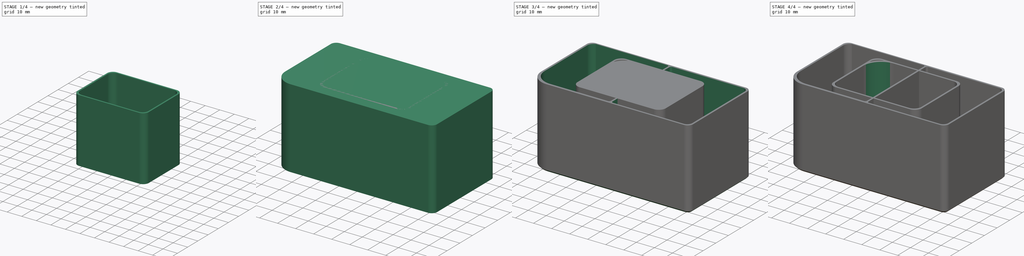
[diagram: build sequence overview — one tinted view per stage of 4, left to right]
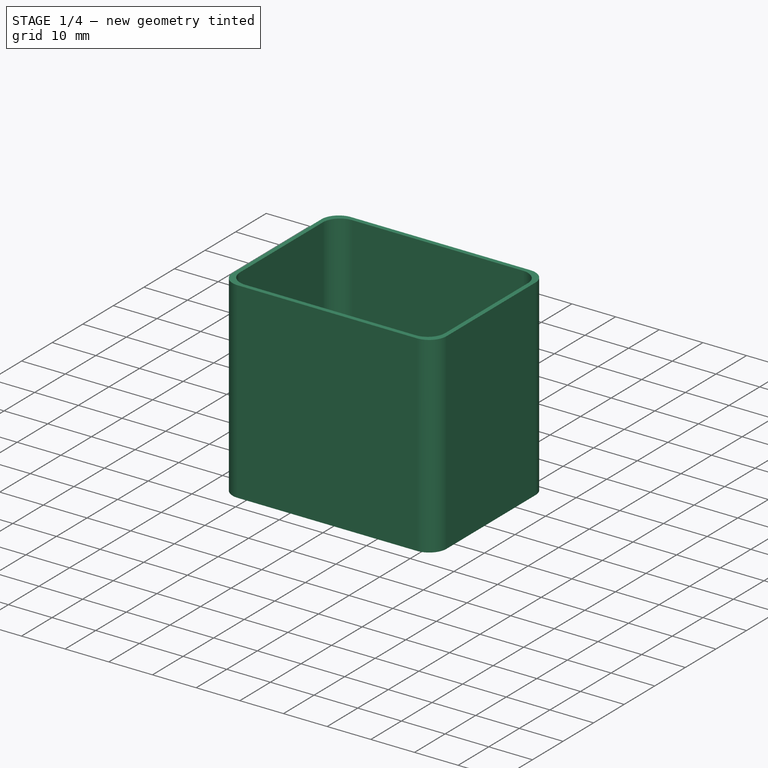
[diagram: stage 1 of 4 — iso view after this stage's code; geometry added in this stage tinted green]
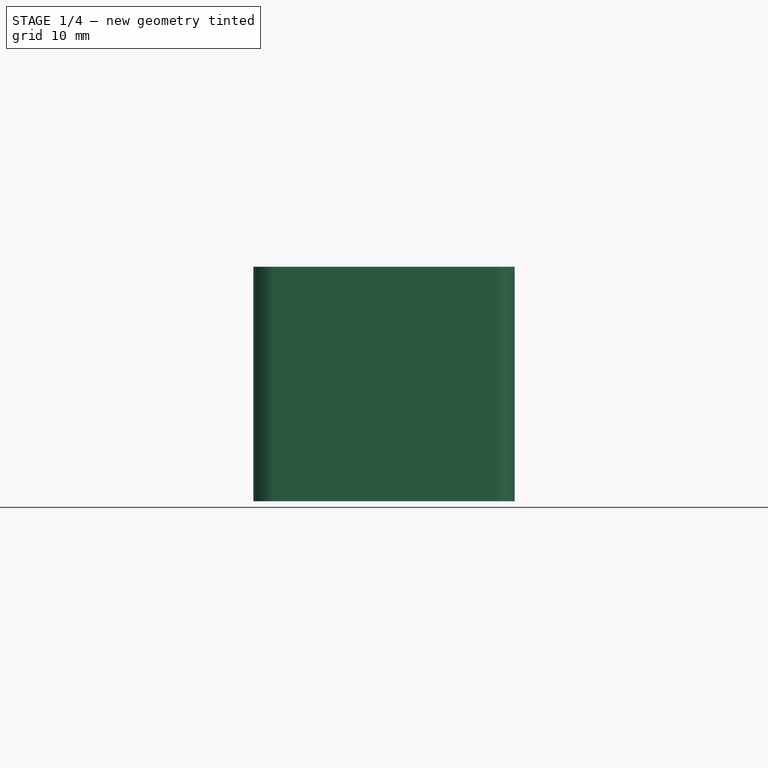
[diagram: stage 1 of 4 — front view after this stage's code; geometry added in this stage tinted green]
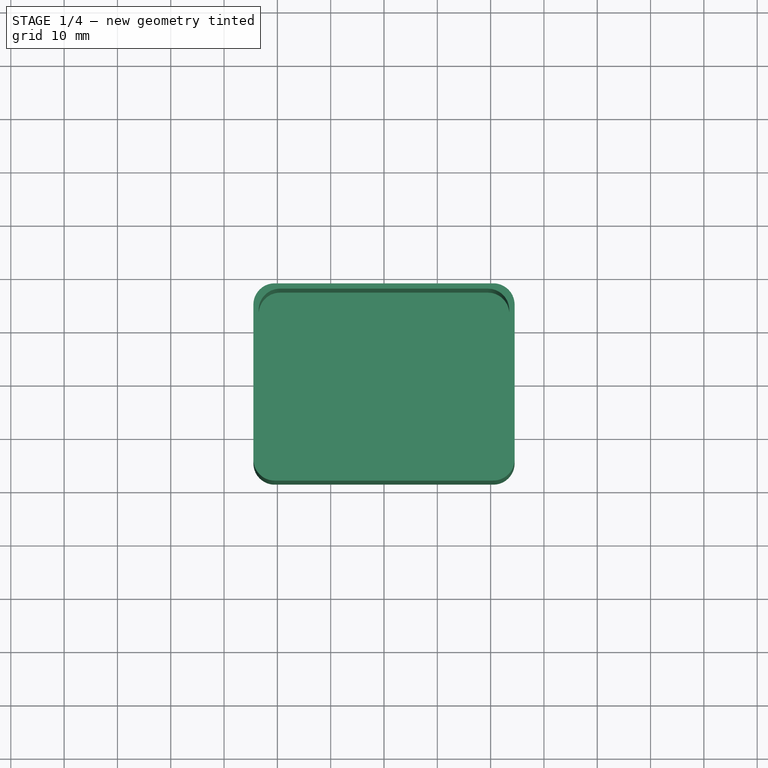
[diagram: stage 1 of 4 — top view after this stage's code; geometry added in this stage tinted green]
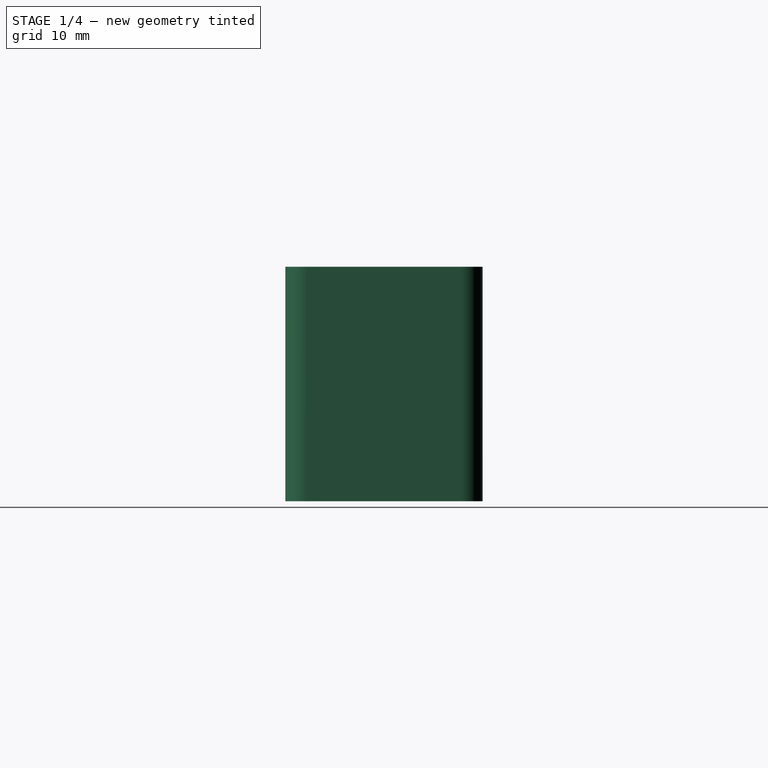
[diagram: stage 1 of 4 — right view after this stage's code; geometry added in this stage tinted green]
FCSTD DOCUMENT  (FreeCAD 1.2R20260113 (Git shallow))
Label: small box
License: All rights reserved
LicenseURL: http://en.wikipedia.org/wiki/All_rights_reserved
objects: Sketcher::SketchObject×6, PartDesign::Pad×3, PartDesign::Pocket×3, PartDesign::Chamfer×3, PartDesign::Body×3, App::Point×3
note: 42 computed .brp shape members not serialized (recipe doc carries the construction recipe); baked Part::Feature solids carry a one-line shape summary decoded from their .brp

FEATURE [PartDesign::Body] Body001
  AllowCompound = false
  Group = -> [Sketch002,Pad001,Sketch003,Pocket001,Chamfer001]
  Origin = -> Origin001
  Tip = -> Chamfer001
FEATURE [App::Point] Origin002  label="Origin"
  Role = Origin
FEATURE [App::Point] Origin003  label="Origin"
  Role = Origin
FEATURE [App::Point] Origin005
  Role = Origin
FEATURE [Sketcher::SketchObject] Sketch004
  ArcFitTolerance = 1e-06
  AttachmentSupport = -> [XY_Plane002]
  ExternalTypes = [0]
  FullyConstrained = true
  MakeInternals = false
  MapMode = 5
  sketch-geometry (12):
    g0: LineSegment StartX=-24.5 StartY=14.5 StartZ=0 EndX=-24.5 EndY=-14.5 EndZ=0
    g1: LineSegment StartX=-20.5 StartY=-18.5 StartZ=0 EndX=20.5 EndY=-18.5 EndZ=0
    g2: LineSegment StartX=24.5 StartY=-14.5 StartZ=0 EndX=24.5 EndY=14.5 EndZ=0
    g3: LineSegment StartX=20.5 StartY=18.5 StartZ=0 EndX=-20.5 EndY=18.5 EndZ=0
    g4: ArcOfCircle CenterX=-20.5 CenterY=14.5 CenterZ=0 NormalX=0 NormalY=0 NormalZ=1 AngleXU=0 Radius=4 StartAngle=1.5708 EndAngle=3.14159
    g5: GeomPoint [constr] X=-24.5 Y=18.5 Z=0
    g6: ArcOfCircle CenterX=-20.5 CenterY=-14.5 CenterZ=0 NormalX=0 NormalY=0 NormalZ=1 AngleXU=0 Radius=4 StartAngle=3.14159 EndAngle=4.71239
    g7: GeomPoint [constr] X=-24.5 Y=-18.5 Z=0
    g8: ArcOfCircle CenterX=20.5 CenterY=-14.5 CenterZ=0 NormalX=0 NormalY=0 NormalZ=1 AngleXU=0 Radius=4 StartAngle=4.71239 EndAngle=6.28319
    g9: GeomPoint [constr] X=24.5 Y=-18.5 Z=0
    g10: ArcOfCircle CenterX=20.5 CenterY=14.5 CenterZ=0 NormalX=0 NormalY=0 NormalZ=1 AngleXU=0 Radius=4 StartAngle=0 EndAngle=1.5708
    g11: GeomPoint [constr] X=24.5 Y=18.5 Z=0
  constraints (27):
    c: Vertical(g0)
    c: Vertical(g2)
    c: Horizontal(g1)
    c: Horizontal(g3)
    c: Symmetric(g5,g9,g-1)
    c: DistanceY(g7,g5) = 37
    c: PointOnObject(g5,g3)
    c: PointOnObject(g5,g0)
    c: Tangent(g3,g4) = -1.5708
    c: Tangent(g0,g4) = -1.5708
    c: PointOnObject(g7,g0)
    c: PointOnObject(g7,g1)
    c: Tangent(g0,g6) = -1.5708
    c: Tangent(g1,g6) = -1.5708
    c: PointOnObject(g9,g1)
    c: PointOnObject(g9,g2)
    c: Tangent(g1,g8) = -1.5708
    c: Tangent(g2,g8) = -1.5708
    c: PointOnObject(g11,g3)
    c: PointOnObject(g11,g2)
    c: Tangent(g3,g10) = -1.5708
    c: Tangent(g2,g10) = -1.5708
    c: Equal(g6,g8)
    c: Radius(g10) = 4
    c: DistanceX(g0,g2) = 49
    c: Equal(g10,g8)
    c: Radius(g4) = 4
FEATURE [PartDesign::Pad] Pad002
  Direction = (0,0,1)
  Length = 44
  Length2 = 10
  Profile = -> Sketch004
  ReferenceAxis = -> Sketch004 [N_Axis]
  SideType = 0
  Suppressed = false
  Type = 0
  Type2 = 0
FEATURE [Sketcher::SketchObject] Sketch005
  ArcFitTolerance = 1e-06
  AttachmentSupport = -> [Pad002]
  ExternalTypes = [0]
  FullyConstrained = false
  MakeInternals = false
  MapMode = 5
  Placement = pos=(0,0,44) rot=(0,0,1;0rad)
  sketch-geometry (12):
    g0: LineSegment StartX=-23.5 StartY=13.5 StartZ=0 EndX=-23.5 EndY=-13.5013 EndZ=0
    g1: LineSegment StartX=-19.5013 StartY=-17.5 StartZ=0 EndX=19.5013 EndY=-17.5 EndZ=0
    g2: LineSegment StartX=23.5 StartY=-13.5013 StartZ=0 EndX=23.5 EndY=13.5013 EndZ=0
    g3: LineSegment StartX=19.5013 StartY=17.5 StartZ=0 EndX=-19.5 EndY=17.5 EndZ=0
    g4: ArcOfCircle CenterX=19.5013 CenterY=13.5013 CenterZ=0 NormalX=0 NormalY=0 NormalZ=1 AngleXU=0 Radius=3.99874 StartAngle=0 EndAngle=1.5708
    g5: GeomPoint [constr] X=23.5 Y=17.5 Z=0
    g6: ArcOfCircle CenterX=-19.5 CenterY=13.5 CenterZ=0 NormalX=0 NormalY=0 NormalZ=1 AngleXU=0 Radius=4 StartAngle=1.5708 EndAngle=3.14159
    g7: GeomPoint [constr] X=-23.5 Y=17.5 Z=0
    g8: ArcOfCircle CenterX=-19.5013 CenterY=-13.5013 CenterZ=0 NormalX=0 NormalY=0 NormalZ=1 AngleXU=0 Radius=3.99874 StartAngle=3.14159 EndAngle=4.71239
    g9: GeomPoint [constr] X=-23.5 Y=-17.5 Z=0
    g10: ArcOfCircle CenterX=19.5013 CenterY=-13.5013 CenterZ=0 NormalX=0 NormalY=0 NormalZ=1 AngleXU=0 Radius=3.99874 StartAngle=4.71239 EndAngle=6.28319
    g11: GeomPoint [constr] X=23.5 Y=-17.5 Z=0
  constraints (26):
    c: Vertical(g0)
    c: Vertical(g2)
    c: Horizontal(g1)
    c: Horizontal(g3)
    c: Symmetric(g7,g11,g-1)
    c: DistanceY(g9,g7) = 35
    c: PointOnObject(g5,g3)
    c: PointOnObject(g5,g2)
    c: Tangent(g3,g4) = -1.5708
    c: Tangent(g2,g4) = -1.5708
    c: PointOnObject(g7,g0)
    c: PointOnObject(g7,g3)
    c: Tangent(g0,g6) = -1.5708
    c: Tangent(g3,g6) = -1.5708
    c: PointOnObject(g9,g0)
    c: PointOnObject(g9,g1)
    c: Tangent(g0,g8) = -1.5708
    c: Tangent(g1,g8) = -1.5708
    c: PointOnObject(g11,g1)
    c: PointOnObject(g11,g2)
    c: Tangent(g1,g10) = -1.5708
    c: Tangent(g2,g10) = -1.5708
    c: Equal(g10,g4)
    c: DistanceX(g0,g2) = 47
    c: Equal(g4,g8)
    c: Radius(g6) = 4
FEATURE [PartDesign::Pocket] Pocket002
  BaseFeature = -> Pad002
  Direction = (0,0,-1)
  Length = 43
  Length2 = 5
  Profile = -> Sketch005
  ReferenceAxis = -> Sketch005 [N_Axis]
  SideType = 0
  Suppressed = false
  Type = 0
  Type2 = 0
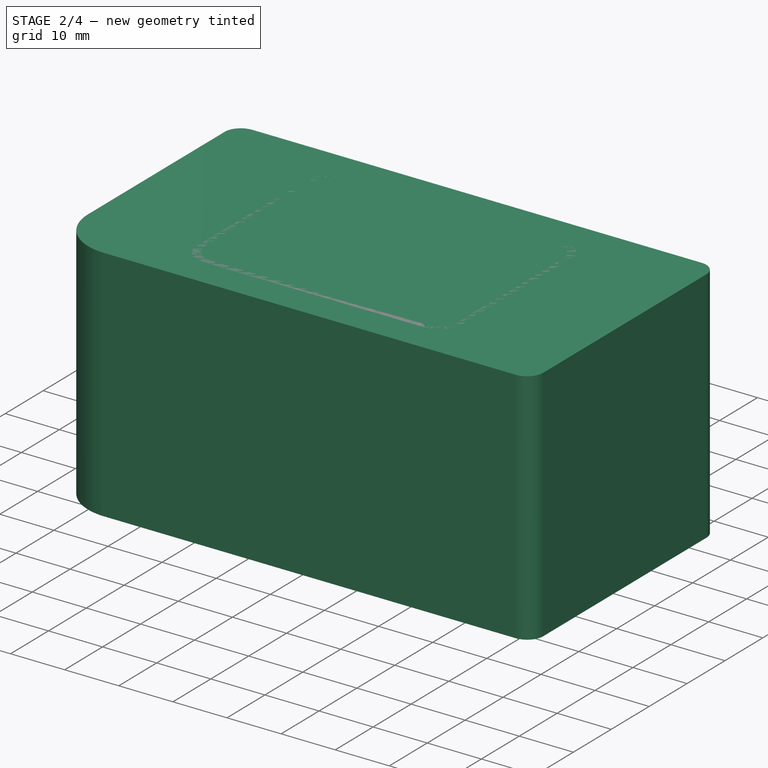
[diagram: stage 2 of 4 — iso view after this stage's code; geometry added in this stage tinted green]
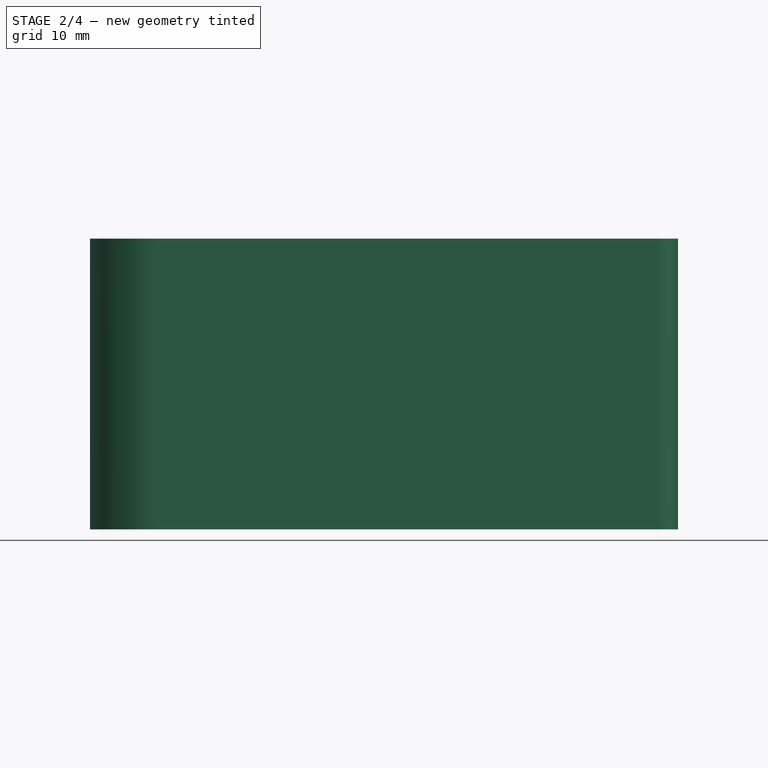
[diagram: stage 2 of 4 — front view after this stage's code; geometry added in this stage tinted green]
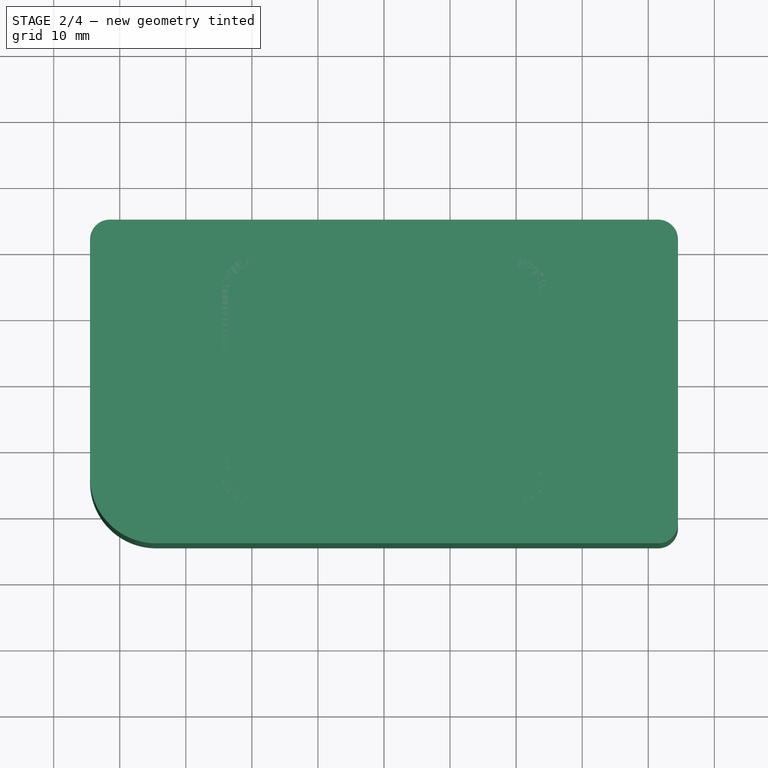
[diagram: stage 2 of 4 — top view after this stage's code; geometry added in this stage tinted green]
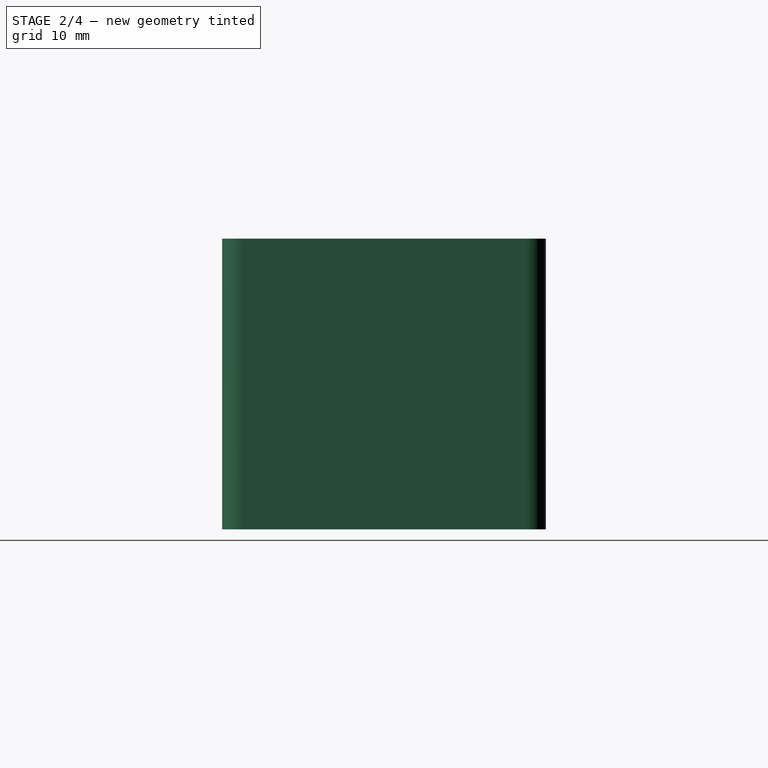
[diagram: stage 2 of 4 — right view after this stage's code; geometry added in this stage tinted green]
FEATURE [PartDesign::Body] Body
  AllowCompound = false
  Group = -> [Sketch,Pad,Sketch001,Pocket,Chamfer]
  Origin = -> Origin
  Tip = -> Chamfer
FEATURE [Sketcher::SketchObject] Sketch002
  ArcFitTolerance = 1e-06
  AttachmentSupport = -> [XY_Plane001]
  ExternalTypes = [0]
  FullyConstrained = true
  MakeInternals = false
  MapMode = 5
  sketch-geometry (12):
    g0: LineSegment StartX=-44.5 StartY=21.5 StartZ=0 EndX=-44.5 EndY=-14.5 EndZ=0
    g1: LineSegment StartX=-34.5 StartY=-24.5 StartZ=0 EndX=41.5 EndY=-24.5 EndZ=0
    g2: LineSegment StartX=44.5 StartY=-21.5 StartZ=0 EndX=44.5 EndY=21.5 EndZ=0
    g3: LineSegment StartX=41.5 StartY=24.5 StartZ=0 EndX=-41.5 EndY=24.5 EndZ=0
    g4: ArcOfCircle CenterX=-41.5 CenterY=21.5 CenterZ=0 NormalX=0 NormalY=0 NormalZ=1 AngleXU=0 Radius=3 StartAngle=1.5708 EndAngle=3.14159
    g5: GeomPoint [constr] X=-44.5 Y=24.5 Z=0
    g6: ArcOfCircle CenterX=-34.5 CenterY=-14.5 CenterZ=0 NormalX=0 NormalY=0 NormalZ=1 AngleXU=0 Radius=10 StartAngle=3.14159 EndAngle=4.71239
    g7: GeomPoint [constr] X=-44.5 Y=-24.5 Z=0
    g8: ArcOfCircle CenterX=41.5 CenterY=-21.5 CenterZ=0 NormalX=0 NormalY=0 NormalZ=1 AngleXU=0 Radius=3 StartAngle=4.71239 EndAngle=6.28319
    g9: GeomPoint [constr] X=44.5 Y=-24.5 Z=0
    g10: ArcOfCircle CenterX=41.5 CenterY=21.5 CenterZ=0 NormalX=0 NormalY=0 NormalZ=1 AngleXU=0 Radius=3 StartAngle=5e-16 EndAngle=1.5708
    g11: GeomPoint [constr] X=44.5 Y=24.5 Z=0
  constraints (27):
    c: Vertical(g0)
    c: Vertical(g2)
    c: Horizontal(g1)
    c: Horizontal(g3)
    c: Symmetric(g5,g9,g-1)
    c: DistanceX(g5,g11) = 89
    c: DistanceY(g7,g5) = 49
    c: PointOnObject(g5,g3)
    c: PointOnObject(g5,g0)
    c: Tangent(g3,g4) = -1.5708
    c: Tangent(g0,g4) = -1.5708
    c: PointOnObject(g7,g0)
    c: PointOnObject(g7,g1)
    c: Tangent(g0,g6) = -1.5708
    c: Tangent(g1,g6) = -1.5708
    c: PointOnObject(g9,g1)
    c: PointOnObject(g9,g2)
    c: Tangent(g1,g8) = -1.5708
    c: Tangent(g2,g8) = -1.5708
    c: PointOnObject(g11,g3)
    c: PointOnObject(g11,g2)
    c: Tangent(g3,g10) = -1.5708
    c: Tangent(g2,g10) = -1.5708
    c: Radius(g6) = 10
    c: Radius(g8) = 3
    c: Equal(g4,g10)
    c: Equal(g10,g8)
FEATURE [PartDesign::Pad] Pad001
  Direction = (0,0,1)
  Length = 44
  Length2 = 10
  Profile = -> Sketch002
  ReferenceAxis = -> Sketch002 [N_Axis]
  SideType = 0
  Suppressed = false
  Type = 0
  Type2 = 0
FEATURE [PartDesign::Chamfer] Chamfer002
  Angle = 45
  Base = -> Pocket002 [Edge11,Edge12,Edge13,Edge14,Edge15,Edge6,Edge3,Edge9]
  BaseFeature = -> Pocket002
  ChamferType = 0
  FlipDirection = false
  Size = 1
  Size2 = 1
  SupportTransform = false
  Suppressed = false
  UseAllEdges = false
FEATURE [PartDesign::Body] Body002
  AllowCompound = false
  Group = -> [Sketch004,Pad002,Sketch005,Pocket002,Chamfer002]
  Origin = -> Origin004
  Tip = -> Chamfer002
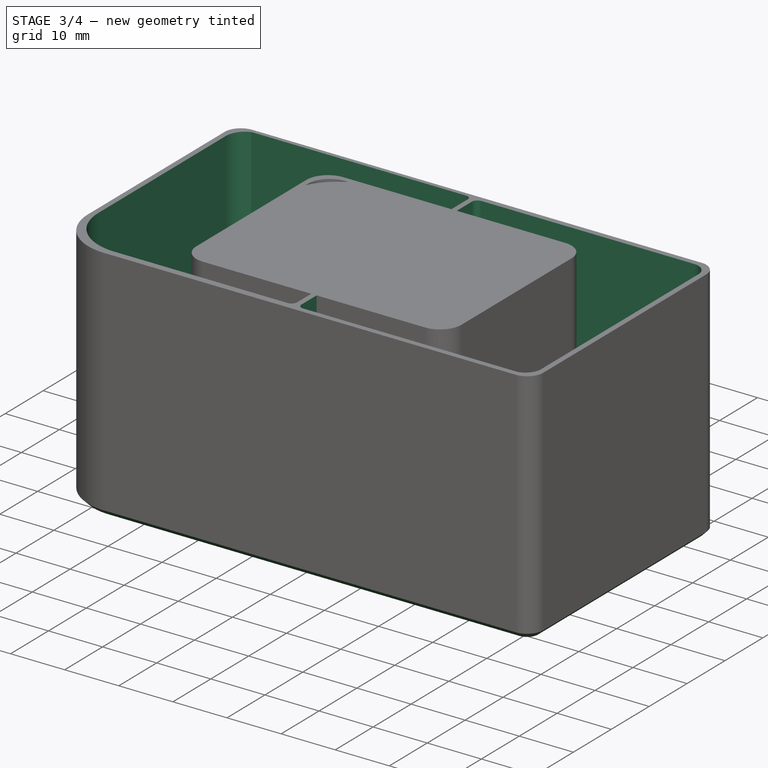
[diagram: stage 3 of 4 — iso view after this stage's code; geometry added in this stage tinted green]
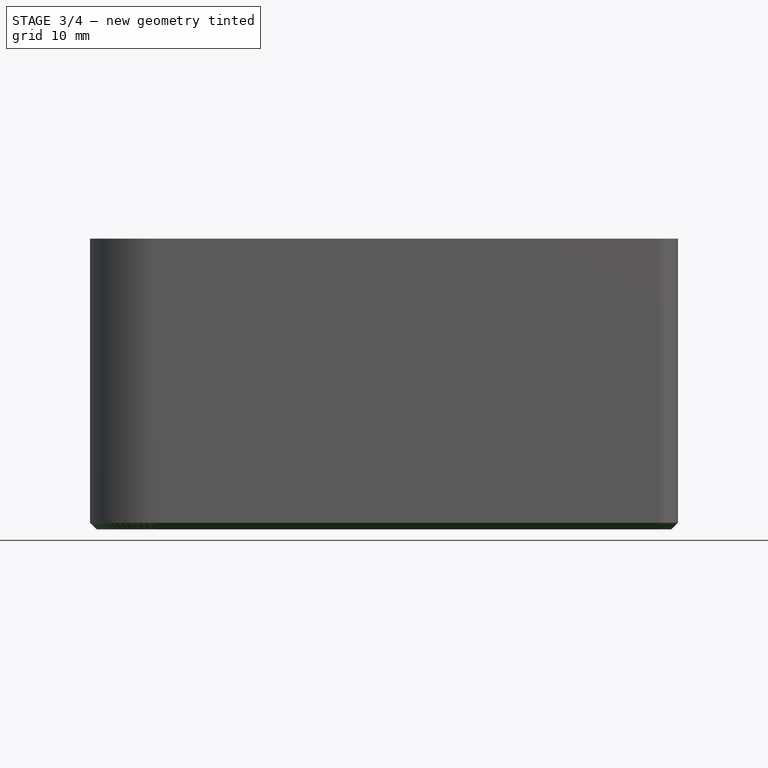
[diagram: stage 3 of 4 — front view after this stage's code; geometry added in this stage tinted green]
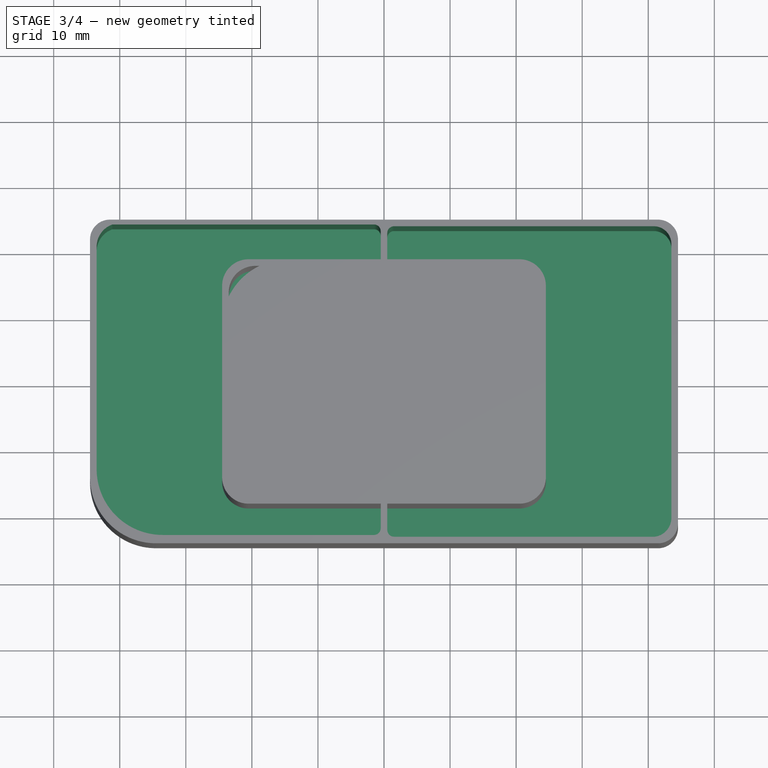
[diagram: stage 3 of 4 — top view after this stage's code; geometry added in this stage tinted green]
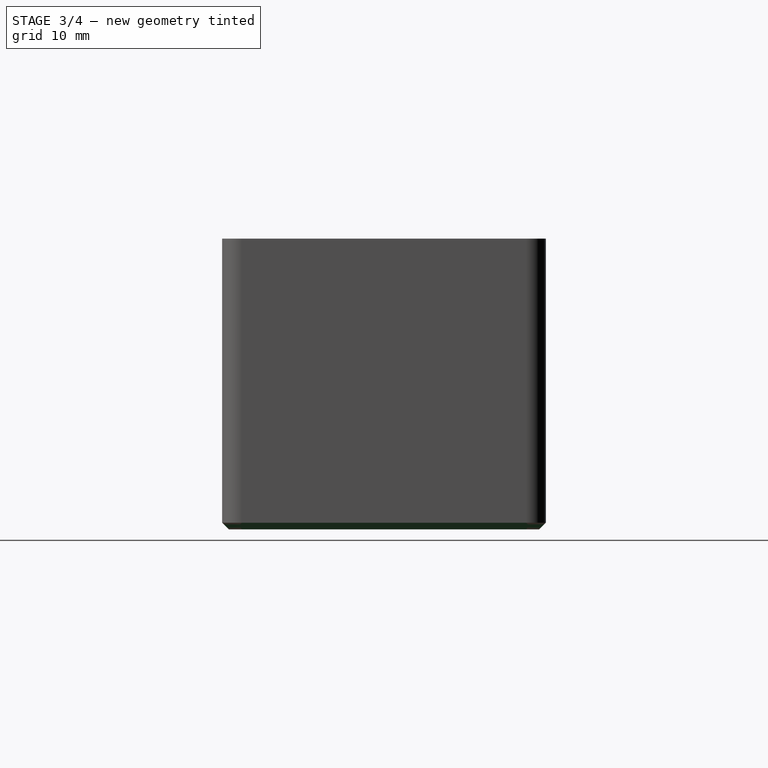
[diagram: stage 3 of 4 — right view after this stage's code; geometry added in this stage tinted green]
FEATURE [Sketcher::SketchObject] Sketch
  ArcFitTolerance = 1e-06
  AttachmentSupport = -> [XY_Plane]
  ExternalTypes = [0]
  FullyConstrained = true
  MakeInternals = false
  MapMode = 5
  sketch-geometry (12):
    g0: LineSegment StartX=-24.5 StartY=8.5 StartZ=0 EndX=-24.5 EndY=-14.5 EndZ=0
    g1: LineSegment StartX=-20.5 StartY=-18.5 StartZ=0 EndX=20.5 EndY=-18.5 EndZ=0
    g2: LineSegment StartX=24.5 StartY=-14.5 StartZ=0 EndX=24.5 EndY=14.5 EndZ=0
    g3: LineSegment StartX=20.5 StartY=18.5 StartZ=0 EndX=-14.5 EndY=18.5 EndZ=0
    g4: ArcOfCircle CenterX=-14.5 CenterY=8.5 CenterZ=0 NormalX=0 NormalY=0 NormalZ=1 AngleXU=0 Radius=10 StartAngle=1.5708 EndAngle=3.14159
    g5: GeomPoint [constr] X=-24.5 Y=18.5 Z=0
    g6: ArcOfCircle CenterX=-20.5 CenterY=-14.5 CenterZ=0 NormalX=0 NormalY=0 NormalZ=1 AngleXU=0 Radius=4 StartAngle=3.14159 EndAngle=4.71239
    g7: GeomPoint [constr] X=-24.5 Y=-18.5 Z=0
    g8: ArcOfCircle CenterX=20.5 CenterY=-14.5 CenterZ=0 NormalX=0 NormalY=0 NormalZ=1 AngleXU=0 Radius=4 StartAngle=4.71239 EndAngle=6.28319
    g9: GeomPoint [constr] X=24.5 Y=-18.5 Z=0
    g10: ArcOfCircle CenterX=20.5 CenterY=14.5 CenterZ=0 NormalX=0 NormalY=0 NormalZ=1 AngleXU=0 Radius=4 StartAngle=0 EndAngle=1.5708
    g11: GeomPoint [constr] X=24.5 Y=18.5 Z=0
  constraints (27):
    c: Vertical(g0)
    c: Vertical(g2)
    c: Horizontal(g1)
    c: Horizontal(g3)
    c: Symmetric(g5,g9,g-1)
    c: DistanceY(g7,g5) = 37
    c: PointOnObject(g5,g3)
    c: PointOnObject(g5,g0)
    c: Tangent(g3,g4) = -1.5708
    c: Tangent(g0,g4) = -1.5708
    c: PointOnObject(g7,g0)
    c: PointOnObject(g7,g1)
    c: Tangent(g0,g6) = -1.5708
    c: Tangent(g1,g6) = -1.5708
    c: PointOnObject(g9,g1)
    c: PointOnObject(g9,g2)
    c: Tangent(g1,g8) = -1.5708
    c: Tangent(g2,g8) = -1.5708
    c: PointOnObject(g11,g3)
    c: PointOnObject(g11,g2)
    c: Tangent(g3,g10) = -1.5708
    c: Tangent(g2,g10) = -1.5708
    c: Equal(g6,g8)
    c: Radius(g10) = 4
    c: DistanceX(g0,g2) = 49
    c: Equal(g10,g8)
    c: Radius(g4) = 10
FEATURE [PartDesign::Pad] Pad
  Direction = (0,0,1)
  Length = 44
  Length2 = 10
  Profile = -> Sketch
  ReferenceAxis = -> Sketch [N_Axis]
  SideType = 0
  Suppressed = false
  Type = 0
  Type2 = 0
FEATURE [Sketcher::SketchObject] Sketch003
  ArcFitTolerance = 1e-06
  AttachmentSupport = -> [Pad001]
  ExternalTypes = [0]
  FullyConstrained = false
  MakeInternals = false
  MapMode = 5
  Placement = pos=(0,0,44) rot=(0,0,1;0rad)
  sketch-geometry (21):
    g0: LineSegment StartX=-43.5 StartY=20.3926 StartZ=0 EndX=-43.5 EndY=-13.2362 EndZ=0
    g1: LineSegment StartX=-33.5 StartY=-23.2362 StartZ=0 EndX=-1.50485 EndY=-23.2362 EndZ=0
    g2: LineSegment StartX=43.5 StartY=-20.6475 StartZ=0 EndX=43.5 EndY=20.8229 EndZ=0
    g3: LineSegment StartX=40.8229 StartY=23.5 StartZ=0 EndX=1.53137 EndY=23.5 EndZ=0
    g4: ArcOfCircle CenterX=40.8229 CenterY=20.8229 CenterZ=0 NormalX=0 NormalY=0 NormalZ=1 AngleXU=0 Radius=2.67706 StartAngle=3e-16 EndAngle=1.5708
    g5: GeomPoint [constr] X=43.5 Y=24 Z=0
    g6: ArcOfCircle CenterX=40.6193 CenterY=-20.6475 CenterZ=0 NormalX=0 NormalY=0 NormalZ=1 AngleXU=0 Radius=2.88066 StartAngle=4.85223 EndAngle=6.28319
    g7: GeomPoint [constr] X=43.5 Y=-23.5 Z=0
    g8: ArcOfCircle CenterX=-33.5 CenterY=-13.2362 CenterZ=0 NormalX=0 NormalY=0 NormalZ=1 AngleXU=0 Radius=10 StartAngle=3.14159 EndAngle=4.71239
    g9: GeomPoint [constr] X=-43.5 Y=-23.2362 Z=0
    g10: ArcOfCircle CenterX=-39.9207 CenterY=20.3926 CenterZ=0 NormalX=0 NormalY=0 NormalZ=1 AngleXU=0 Radius=3.57932 StartAngle=1.91346 EndAngle=3.14159
    g11: GeomPoint [constr] X=-43.5 Y=24 Z=0
    g12: LineSegment StartX=-0.5 StartY=22.759 StartZ=0 EndX=-0.5 EndY=-22.2313 EndZ=0
    g13: LineSegment StartX=0.5 StartY=22.4686 StartZ=0 EndX=0.5 EndY=-22.4686 EndZ=0
    g14: LineSegment StartX=1.53137 StartY=-23.5 StartZ=0 EndX=41.0209 EndY=-23.5 EndZ=0
    g15: LineSegment StartX=-1.50485 StartY=23.7638 StartZ=0 EndX=-41.1233 EndY=23.7638 EndZ=0
    g16: ArcOfCircle CenterX=-1.50485 CenterY=22.759 CenterZ=0 NormalX=0 NormalY=0 NormalZ=1 AngleXU=0 Radius=1.00485 StartAngle=-6.2e-15 EndAngle=1.5708
    g17: ArcOfCircle CenterX=1.53137 CenterY=22.4686 CenterZ=0 NormalX=0 NormalY=0 NormalZ=1 AngleXU=0 Radius=1.03137 StartAngle=1.5708 EndAngle=3.14159
    g18: ArcOfCircle CenterX=1.53137 CenterY=-22.4686 CenterZ=0 NormalX=0 NormalY=0 NormalZ=1 AngleXU=0 Radius=1.03137 StartAngle=3.14159 EndAngle=4.71239
    g19: ArcOfCircle CenterX=-1.50485 CenterY=-22.2313 CenterZ=0 NormalX=0 NormalY=0 NormalZ=1 AngleXU=0 Radius=1.00485 StartAngle=4.71239 EndAngle=6.28319
    g20: GeomPoint [constr] X=-0.5 Y=-23.2362 Z=0
  constraints (41):
    c: Vertical(g0)
    c: Vertical(g2)
    c: Horizontal(g1)
    c: PointOnObject(g5,g2)
    c: Tangent(g3,g4) = -1.5708
    c: Tangent(g2,g4) = -1.5708
    c: PointOnObject(g7,g2)
    c: PointOnObject(g7,g14)
    c: Tangent(g2,g6) = -1.5708
    c: Coincident(g14,g6) = -1.5708
    c: PointOnObject(g9,g0)
    c: PointOnObject(g9,g1)
    c: Tangent(g0,g8) = -1.5708
    c: Tangent(g1,g8) = -1.5708
    c: PointOnObject(g11,g0)
    c: Tangent(g0,g10) = -1.5708
    c: Coincident(g15,g10) = -1.5708
    c: DistanceX(g9,g7) = 87
    c: Vertical(g13)
    c: Vertical(g12)
    c: Tangent(g15,g16) = -1.5708
    c: Tangent(g12,g16) = 1.5708
    c: Tangent(g3,g17) = -1.5708
    c: Tangent(g13,g17) = -1.5708
    c: Tangent(g13,g18) = -1.5708
    c: Tangent(g14,g18) = -1.5708
    c: PointOnObject(g20,g1)
    c: PointOnObject(g20,g12)
    c: Tangent(g1,g19) = -1.5708
    c: Tangent(g12,g19) = 1.5708
    c: Distance(g12,g-2) = 0.5
    c: DistanceY(g1,g10) = 47
    c: DistanceY(g6,g3) = 47
    c: Horizontal(g3)
    c: Horizontal(g15)
    c: Symmetric(g17,g18,g-1)
    c: Horizontal(g14)
    c: Distance(g13,g-2) = 0.5
    c: Equal(g19,g16)
    c: Radius(g8) = 10
    c: DistanceX(g11,g12) = 43
FEATURE [PartDesign::Pocket] Pocket001
  BaseFeature = -> Pad001
  Direction = (0,0,-1)
  Length = 42
  Length2 = 5
  Profile = -> Sketch003
  ReferenceAxis = -> Sketch003 [N_Axis]
  SideType = 0
  Suppressed = false
  Type = 0
  Type2 = 0
FEATURE [PartDesign::Chamfer] Chamfer001
  Angle = 45
  Base = -> Pocket001 [Edge11,Edge12,Edge13,Edge14,Edge15,Face4,Edge6,Edge3,Edge9]
  BaseFeature = -> Pocket001
  ChamferType = 0
  FlipDirection = false
  Size = 1
  Size2 = 1
  SupportTransform = false
  Suppressed = false
  UseAllEdges = false
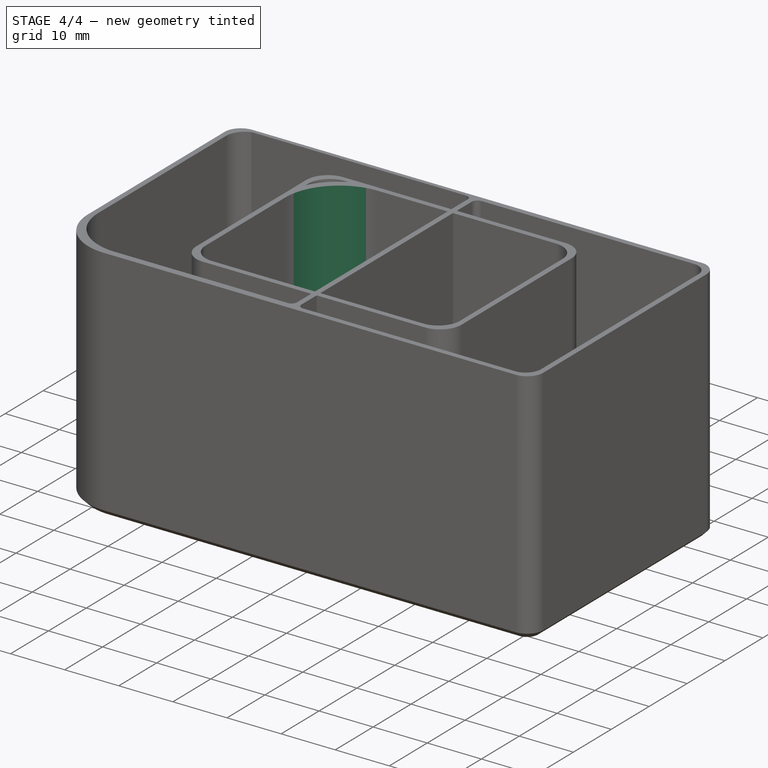
[diagram: stage 4 of 4 — iso view after this stage's code; geometry added in this stage tinted green]
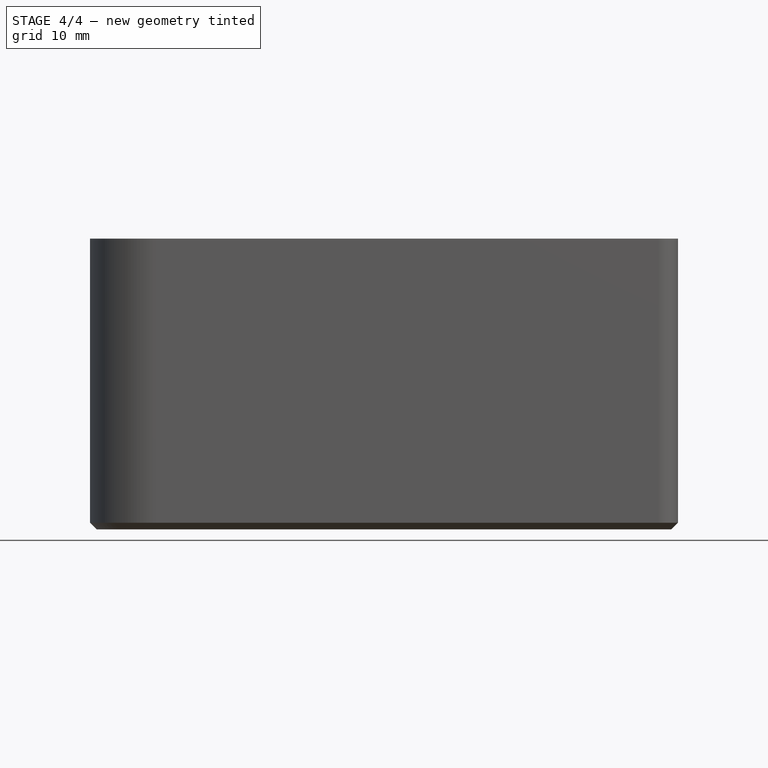
[diagram: stage 4 of 4 — front view after this stage's code; geometry added in this stage tinted green]
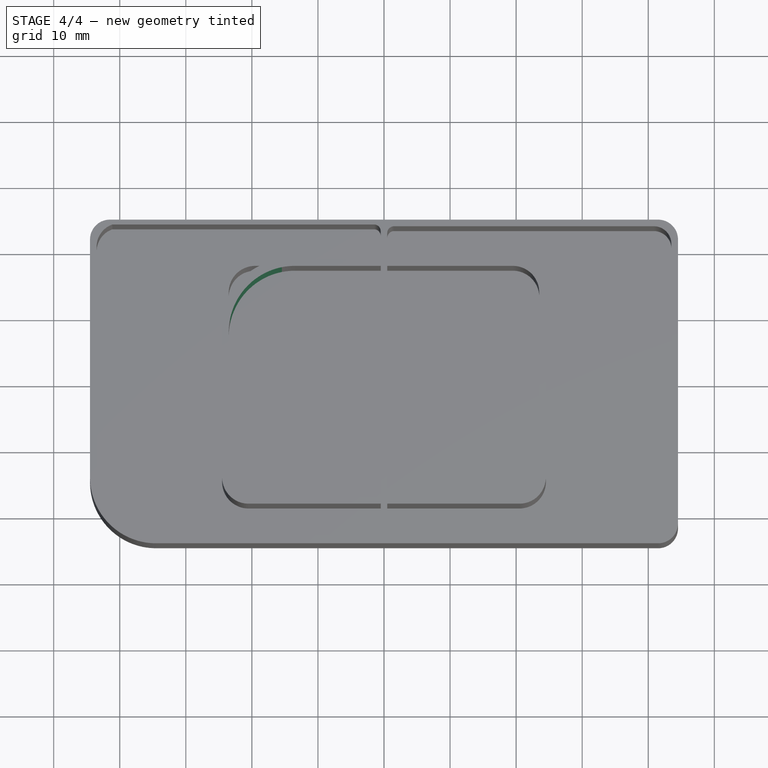
[diagram: stage 4 of 4 — top view after this stage's code; geometry added in this stage tinted green]
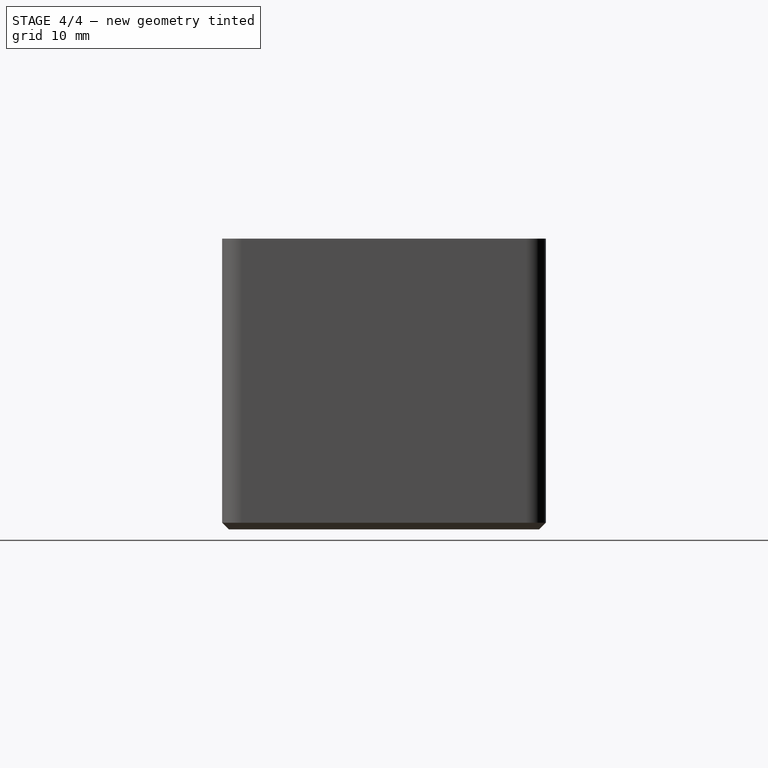
[diagram: stage 4 of 4 — right view after this stage's code; geometry added in this stage tinted green]
FEATURE [Sketcher::SketchObject] Sketch001
  ArcFitTolerance = 1e-06
  AttachmentSupport = -> [Pad]
  ExternalTypes = [0]
  FullyConstrained = false
  MakeInternals = false
  MapMode = 5
  Placement = pos=(0,0,44) rot=(0,0,1;0rad)
  sketch-geometry (12):
    g0: LineSegment StartX=-23.5 StartY=7.5 StartZ=0 EndX=-23.5 EndY=-13.5013 EndZ=0
    g1: LineSegment StartX=-19.5013 StartY=-17.5 StartZ=0 EndX=19.5013 EndY=-17.5 EndZ=0
    g2: LineSegment StartX=23.5 StartY=-13.5013 StartZ=0 EndX=23.5 EndY=13.5013 EndZ=0
    g3: LineSegment StartX=19.5013 StartY=17.5 StartZ=0 EndX=-13.5 EndY=17.5 EndZ=0
    g4: ArcOfCircle CenterX=19.5013 CenterY=13.5013 CenterZ=0 NormalX=0 NormalY=0 NormalZ=1 AngleXU=0 Radius=3.99873 StartAngle=0 EndAngle=1.5708
    g5: GeomPoint [constr] X=23.5 Y=17.5 Z=0
    g6: ArcOfCircle CenterX=-13.5 CenterY=7.5 CenterZ=0 NormalX=0 NormalY=0 NormalZ=1 AngleXU=0 Radius=10 StartAngle=1.5708 EndAngle=3.14159
    g7: GeomPoint [constr] X=-23.5 Y=17.5 Z=0
    g8: ArcOfCircle CenterX=-19.5013 CenterY=-13.5013 CenterZ=0 NormalX=0 NormalY=0 NormalZ=1 AngleXU=0 Radius=3.99873 StartAngle=3.14159 EndAngle=4.71239
    g9: GeomPoint [constr] X=-23.5 Y=-17.5 Z=0
    g10: ArcOfCircle CenterX=19.5013 CenterY=-13.5013 CenterZ=0 NormalX=0 NormalY=0 NormalZ=1 AngleXU=0 Radius=3.99873 StartAngle=4.71239 EndAngle=6.28319
    g11: GeomPoint [constr] X=23.5 Y=-17.5 Z=0
  constraints (26):
    c: Vertical(g0)
    c: Vertical(g2)
    c: Horizontal(g1)
    c: Horizontal(g3)
    c: Symmetric(g7,g11,g-1)
    c: DistanceY(g9,g7) = 35
    c: PointOnObject(g5,g3)
    c: PointOnObject(g5,g2)
    c: Tangent(g3,g4) = -1.5708
    c: Tangent(g2,g4) = -1.5708
    c: PointOnObject(g7,g0)
    c: PointOnObject(g7,g3)
    c: Tangent(g0,g6) = -1.5708
    c: Tangent(g3,g6) = -1.5708
    c: PointOnObject(g9,g0)
    c: PointOnObject(g9,g1)
    c: Tangent(g0,g8) = -1.5708
    c: Tangent(g1,g8) = -1.5708
    c: PointOnObject(g11,g1)
    c: PointOnObject(g11,g2)
    c: Tangent(g1,g10) = -1.5708
    c: Tangent(g2,g10) = -1.5708
    c: Equal(g10,g4)
    c: DistanceX(g0,g2) = 47
    c: Equal(g4,g8)
    c: Radius(g6) = 10
FEATURE [PartDesign::Pocket] Pocket
  BaseFeature = -> Pad
  Direction = (0,0,-1)
  Length = 43
  Length2 = 5
  Profile = -> Sketch001
  ReferenceAxis = -> Sketch001 [N_Axis]
  SideType = 0
  Suppressed = false
  Type = 0
  Type2 = 0
FEATURE [PartDesign::Chamfer] Chamfer
  Angle = 45
  Base = -> Pocket [Edge11,Edge12,Edge13,Edge14,Edge15,Edge6,Edge3,Edge9]
  BaseFeature = -> Pocket
  ChamferType = 0
  FlipDirection = false
  Size = 1
  Size2 = 1
  SupportTransform = false
  Suppressed = false
  UseAllEdges = false
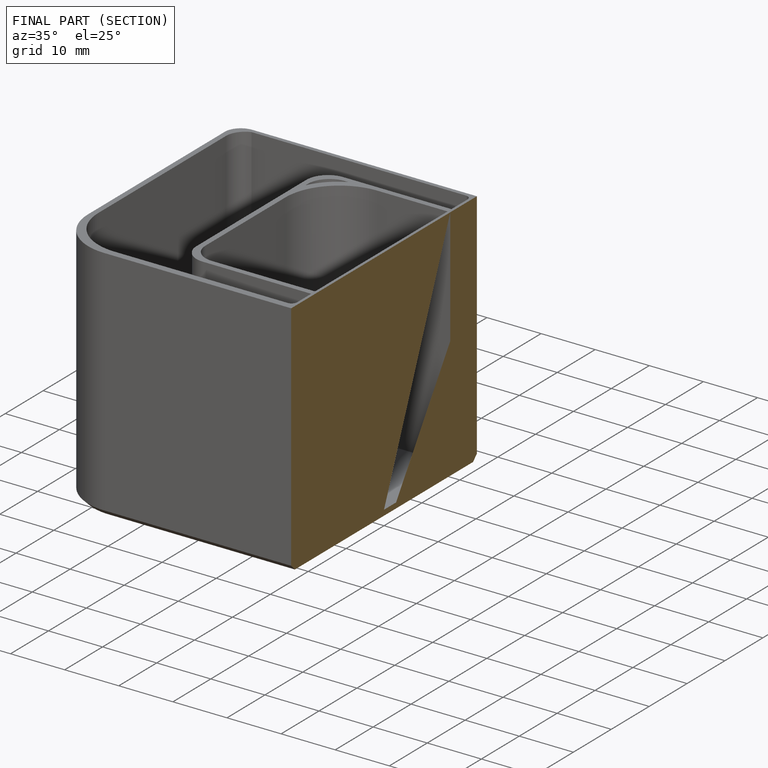
[diagram: finished part — half-section view (interior)]
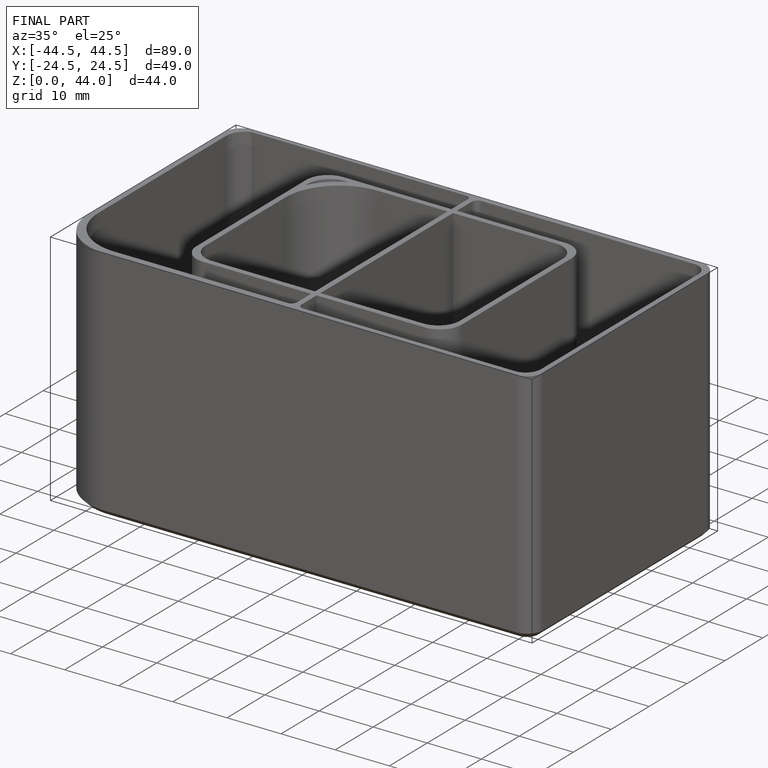
[diagram: finished part — iso view with bounding-box wireframe]
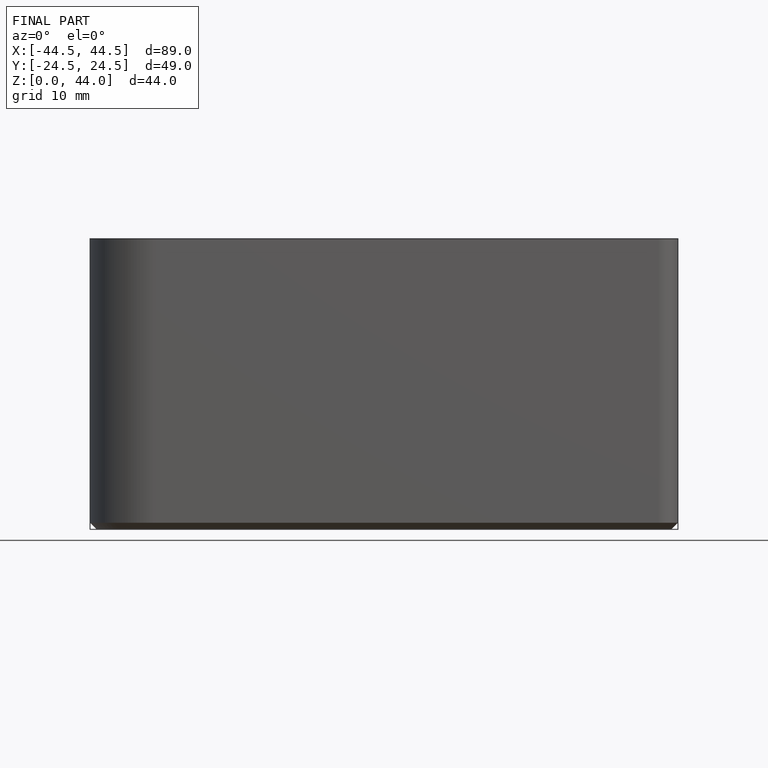
[diagram: finished part — front view with bounding-box wireframe]
